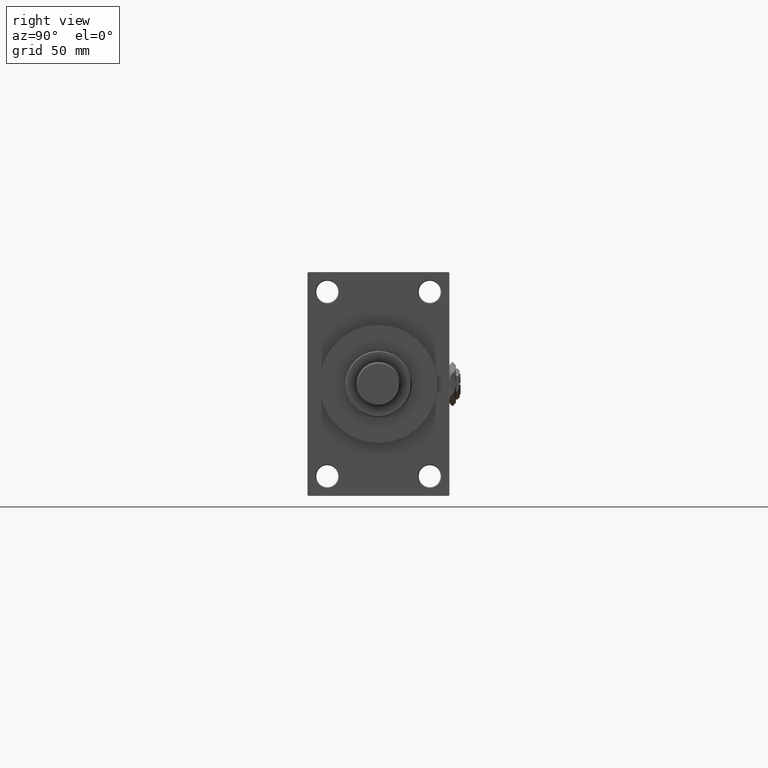
[diagram: clean part render]
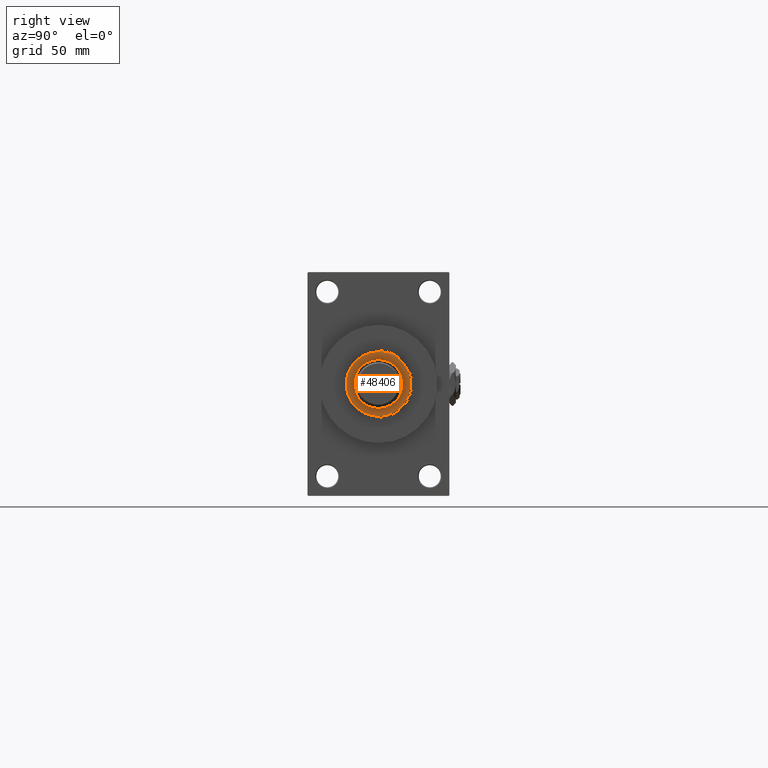
[diagram: same view with one face highlighted and labeled with its STEP entity id]
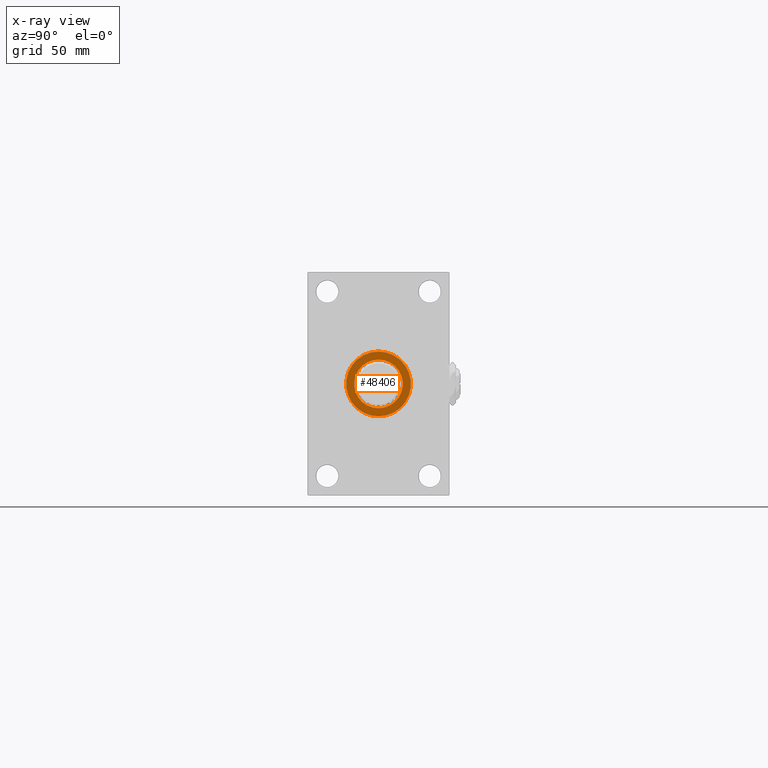
[diagram: x-ray of the same camera — body ghosted, the highlighted face saturated]
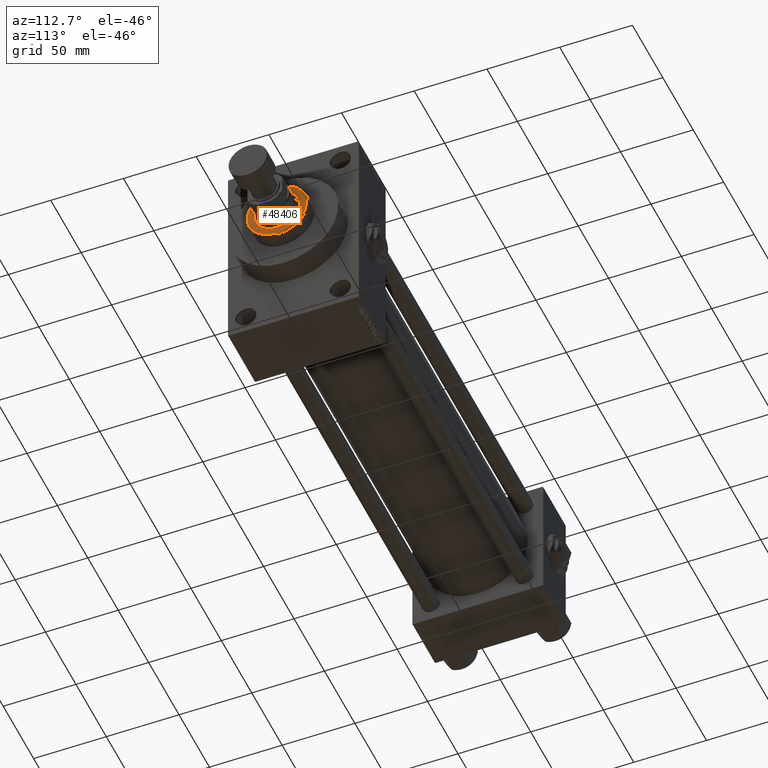
[diagram: same view with one face highlighted and labeled with its STEP entity id]
A machine part, right view. The second image highlights one B-rep face of the part: STEP entity #48406.
The next image is the same camera in x-ray: the body ghosted, the highlighted face saturated — about 0% of this face is hidden behind the body in this view.
A second angle (auxiliary view) of the same face is appended — the face is thin or edge-on in the first view.
In plain terms, the highlighted planar face has unit normal (1, -0, -0).
Its self-contained STEP definition (entity closure, byte-faithful):
#1427 = AXIS2_PLACEMENT_3D ( 'NONE', #37581, #33549, #45122 ) ;
#3400 = CIRCLE ( 'NONE', #8242, 20.50000000000001776 ) ;
#6997 = VERTEX_POINT ( 'NONE', #10618 ) ;
#7663 = VERTEX_POINT ( 'NONE', #17688 ) ;
#8242 = AXIS2_PLACEMENT_3D ( 'NONE', #21939, #14637, #48095 ) ;
#10618 = CARTESIAN_POINT ( 'NONE',  ( 15.50000000000000000, 0.000000000000000000, 54.26000000000000512 ) ) ;
#10866 = AXIS2_PLACEMENT_3D ( 'NONE', #29547, #21527, #33311 ) ;
#11998 = DIRECTION ( 'NONE',  ( 0.000000000000000000, 0.000000000000000000, 1.000000000000000000 ) ) ;
#12193 = EDGE_LOOP ( 'NONE', ( #12360, #49613 ) ) ;
#12360 = ORIENTED_EDGE ( 'NONE', *, *, #33076, .T. ) ;
#14637 = DIRECTION ( 'NONE',  ( 0.000000000000000000, 0.000000000000000000, 1.000000000000000000 ) ) ;
#15054 = EDGE_CURVE ( 'NONE', #17430, #6997, #16592, .T. ) ;
#15469 = ORIENTED_EDGE ( 'NONE', *, *, #15054, .F. ) ;
#16528 = DIRECTION ( 'NONE',  ( 1.000000000000000000, 0.000000000000000000, 0.000000000000000000 ) ) ;
#16592 = CIRCLE ( 'NONE', #45491, 15.50000000000000000 ) ;
#17430 = VERTEX_POINT ( 'NONE', #27874 ) ;
#17499 = FACE_OUTER_BOUND ( 'NONE', #12193, .T. ) ;
#17688 = CARTESIAN_POINT ( 'NONE',  ( -20.50000000000001776, 0.000000000000000000, 54.26000000000000512 ) ) ;
#18699 = DIRECTION ( 'NONE',  ( 0.000000000000000000, 0.000000000000000000, 1.000000000000000000 ) ) ;
#18891 = EDGE_CURVE ( 'NONE', #42852, #7663, #48833, .T. ) ;
#21527 = DIRECTION ( 'NONE',  ( 0.000000000000000000, 0.000000000000000000, 1.000000000000000000 ) ) ;
#21939 = CARTESIAN_POINT ( 'NONE',  ( 0.000000000000000000, 0.000000000000000000, 54.26000000000000512 ) ) ;
#21956 = ORIENTED_EDGE ( 'NONE', *, *, #34904, .F. ) ;
#22477 = DIRECTION ( 'NONE',  ( 1.000000000000000000, 0.000000000000000000, 0.000000000000000000 ) ) ;
#26483 = CARTESIAN_POINT ( 'NONE',  ( 0.000000000000000000, 0.000000000000000000, 54.26000000000000512 ) ) ;
#27874 = CARTESIAN_POINT ( 'NONE',  ( -15.50000000000000000, 1.898202538678397557E-15, 54.26000000000000512 ) ) ;
#29547 = CARTESIAN_POINT ( 'NONE',  ( 0.000000000000000000, 0.000000000000000000, 54.26000000000000512 ) ) ;
#30799 = CARTESIAN_POINT ( 'NONE',  ( 20.50000000000001776, 2.541142108230759057E-15, 54.26000000000000512 ) ) ;
#33076 = EDGE_CURVE ( 'NONE', #7663, #42852, #3400, .T. ) ;
#33311 = DIRECTION ( 'NONE',  ( 1.000000000000000000, 0.000000000000000000, -0.000000000000000000 ) ) ;
#33549 = DIRECTION ( 'NONE',  ( 0.000000000000000000, 0.000000000000000000, 1.000000000000000000 ) ) ;
#34904 = EDGE_CURVE ( 'NONE', #6997, #17430, #48458, .T. ) ;
#35372 = CARTESIAN_POINT ( 'NONE',  ( 0.000000000000000000, 0.000000000000000000, 54.26000000000000512 ) ) ;
#37581 = CARTESIAN_POINT ( 'NONE',  ( 0.000000000000000000, 0.000000000000000000, 54.26000000000000512 ) ) ;
#37595 = PLANE ( 'NONE',  #10866 ) ;
#42852 = VERTEX_POINT ( 'NONE', #30799 ) ;
#45122 = DIRECTION ( 'NONE',  ( 1.000000000000000000, 0.000000000000000000, 0.000000000000000000 ) ) ;
#45491 = AXIS2_PLACEMENT_3D ( 'NONE', #35372, #11998, #16528 ) ;
#46943 = EDGE_LOOP ( 'NONE', ( #21956, #15469 ) ) ;
#48095 = DIRECTION ( 'NONE',  ( 1.000000000000000000, 0.000000000000000000, 0.000000000000000000 ) ) ;
#48406 = ADVANCED_FACE ( 'NONE', ( #48670, #17499 ), #37595, .T. ) ;
#48432 = AXIS2_PLACEMENT_3D ( 'NONE', #26483, #18699, #22477 ) ;
#48458 = CIRCLE ( 'NONE', #48432, 15.50000000000000000 ) ;
#48670 = FACE_BOUND ( 'NONE', #46943, .T. ) ;
#48833 = CIRCLE ( 'NONE', #1427, 20.50000000000001776 ) ;
#49613 = ORIENTED_EDGE ( 'NONE', *, *, #18891, .T. ) ;